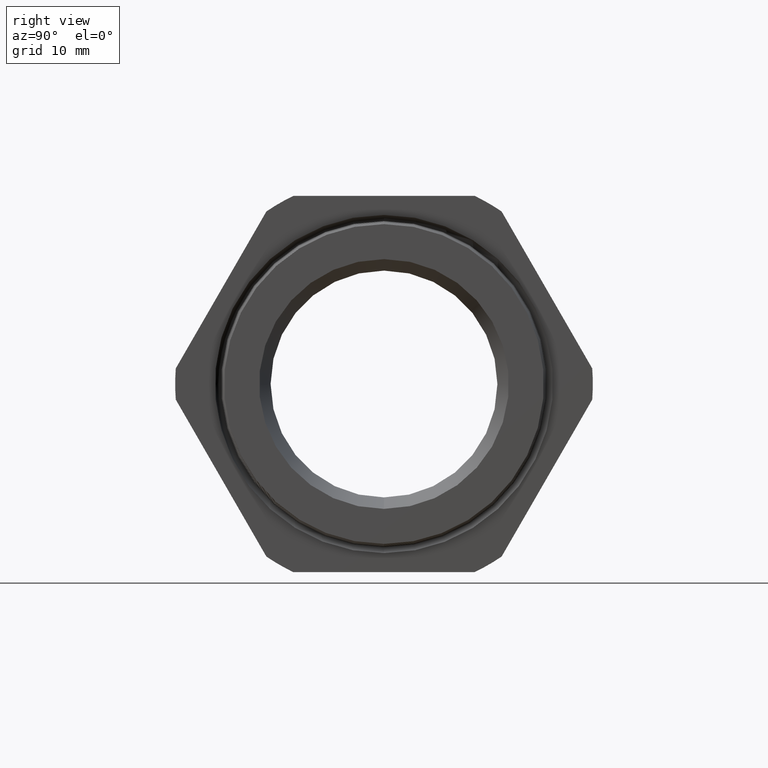
[diagram: clean part render]
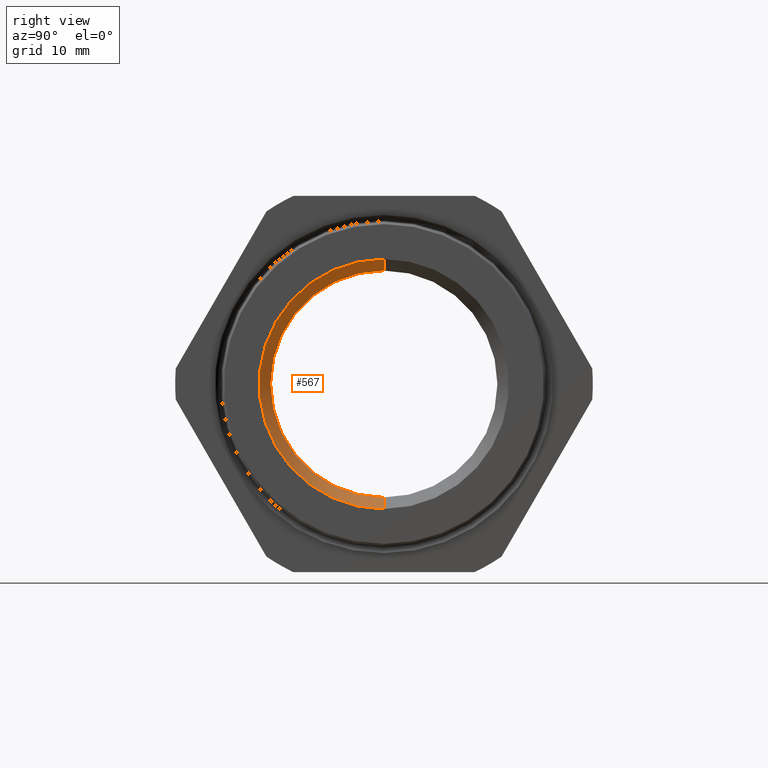
[diagram: same view with one face highlighted and labeled with its STEP entity id]
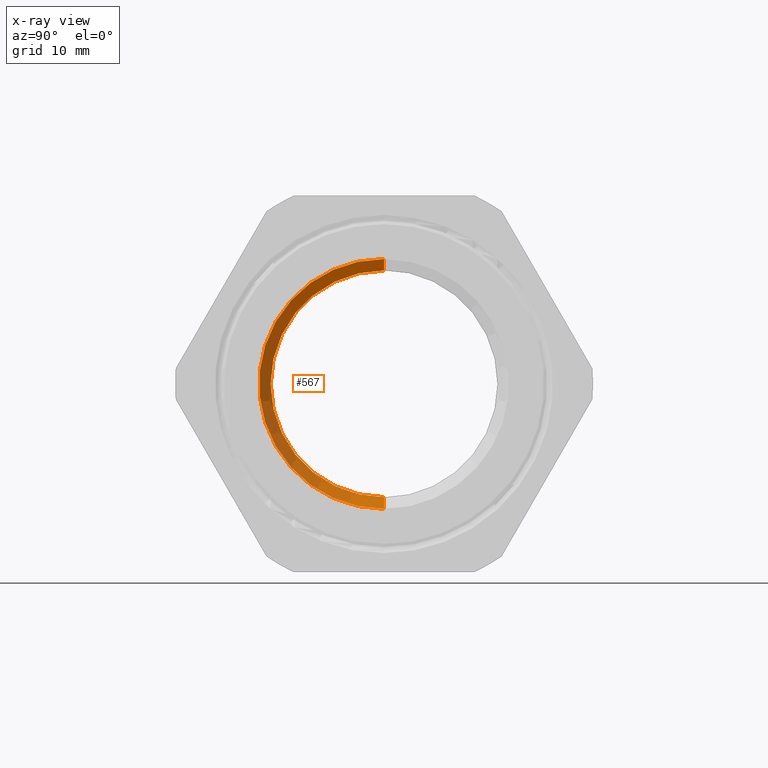
[diagram: x-ray of the same camera — body ghosted, the highlighted face saturated]
A machine part, right view. The second image highlights one B-rep face of the part: STEP entity #567.
The next image is the same camera in x-ray: the body ghosted, the highlighted face saturated — about 0% of this face is hidden behind the body in this view.
In plain terms, the highlighted conical surface has half-angle 2.59 deg.
Its self-contained STEP definition (entity closure, byte-faithful):
#373 = ORIENTED_EDGE ( 'NONE', *, *, #379, .T. ) ;
#375 = VERTEX_POINT ( 'NONE', #1929 ) ;
#376 = ORIENTED_EDGE ( 'NONE', *, *, #381, .T. ) ;
#379 = EDGE_CURVE ( 'NONE', #380, #375, #1980, .T. ) ;
#380 = VERTEX_POINT ( 'NONE', #1976 ) ;
#381 = EDGE_CURVE ( 'NONE', #590, #380, #1975, .T. ) ;
#383 = ORIENTED_EDGE ( 'NONE', *, *, #384, .F. ) ;
#384 = EDGE_CURVE ( 'NONE', #386, #375, #1967, .T. ) ;
#385 = ORIENTED_EDGE ( 'NONE', *, *, #387, .F. ) ;
#386 = VERTEX_POINT ( 'NONE', #1963 ) ;
#387 = EDGE_CURVE ( 'NONE', #590, #386, #1962, .T. ) ;
#540 = EDGE_LOOP ( 'NONE', ( #385, #376, #373, #383 ) ) ;
#567 = ADVANCED_FACE ( 'NONE', ( #2258 ), #2257, .F. ) ;
#590 = VERTEX_POINT ( 'NONE', #2273 ) ;
#1923 = CARTESIAN_POINT ( 'NONE',  ( 0.4000000000000000800, 0.0000000000000000000, 0.0000000000000000000 ) ) ;
#1929 = CARTESIAN_POINT ( 'NONE',  ( 0.4000000000000000800, 0.0000000000000000000, -0.6937500000000000900 ) ) ;
#1958 = DIRECTION ( 'NONE',  ( 0.0000000000000000000, 0.0000000000000000000, -1.000000000000000000 ) ) ;
#1959 = DIRECTION ( 'NONE',  ( 1.000000000000000000, 0.0000000000000000000, 0.0000000000000000000 ) ) ;
#1960 = CARTESIAN_POINT ( 'NONE',  ( -1.009449999999999500, 0.0000000000000000000, 0.0000000000000000000 ) ) ;
#1961 = AXIS2_PLACEMENT_3D ( 'NONE', #1960, #1959, #1958 ) ;
#1962 = CIRCLE ( 'NONE', #1961, 0.6300000000000000000 ) ;
#1963 = CARTESIAN_POINT ( 'NONE',  ( -1.009449999999999500, 0.0000000000000000000, -0.6300000000000000000 ) ) ;
#1964 = DIRECTION ( 'NONE',  ( 0.9989786718499510400, 0.0000000000000000000, -0.04518421393482174200 ) ) ;
#1965 = VECTOR ( 'NONE', #1964, 39.37007874015748900 ) ;
#1966 = CARTESIAN_POINT ( 'NONE',  ( -1.009449999999999500, 0.0000000000000000000, -0.6300000000000000000 ) ) ;
#1967 = LINE ( 'NONE', #1966, #1965 ) ;
#1972 = DIRECTION ( 'NONE',  ( 0.9989786718499510400, 5.533470296726868500E-018, 0.04518421393482174200 ) ) ;
#1973 = VECTOR ( 'NONE', #1972, 39.37007874015748900 ) ;
#1974 = CARTESIAN_POINT ( 'NONE',  ( -1.009449999999999500, 7.715274834628325400E-017, 0.6300000000000000000 ) ) ;
#1975 = LINE ( 'NONE', #1974, #1973 ) ;
#1976 = CARTESIAN_POINT ( 'NONE',  ( 0.4000000000000000800, 8.495987169084764700E-017, 0.6937500000000000900 ) ) ;
#1977 = DIRECTION ( 'NONE',  ( 0.0000000000000000000, 0.0000000000000000000, -1.000000000000000000 ) ) ;
#1978 = DIRECTION ( 'NONE',  ( 1.000000000000000000, 0.0000000000000000000, 0.0000000000000000000 ) ) ;
#1979 = AXIS2_PLACEMENT_3D ( 'NONE', #1923, #1978, #1977 ) ;
#1980 = CIRCLE ( 'NONE', #1979, 0.6937500000000000900 ) ;
#2252 = DIRECTION ( 'NONE',  ( 0.0000000000000000000, 0.0000000000000000000, -1.000000000000000000 ) ) ;
#2253 = DIRECTION ( 'NONE',  ( 1.000000000000000000, 0.0000000000000000000, 0.0000000000000000000 ) ) ;
#2254 = CARTESIAN_POINT ( 'NONE',  ( -1.009449999999999500, 0.0000000000000000000, 0.0000000000000000000 ) ) ;
#2255 = AXIS2_PLACEMENT_3D ( 'NONE', #2254, #2253, #2252 ) ;
#2257 = CONICAL_SURFACE ( 'NONE', #2255, 0.6300000000000000000, 0.04519960285840475500 ) ;
#2258 = FACE_OUTER_BOUND ( 'NONE', #540, .T. ) ;
#2273 = CARTESIAN_POINT ( 'NONE',  ( -1.009449999999999500, 8.105631001856545000E-017, 0.6300000000000000000 ) ) ;